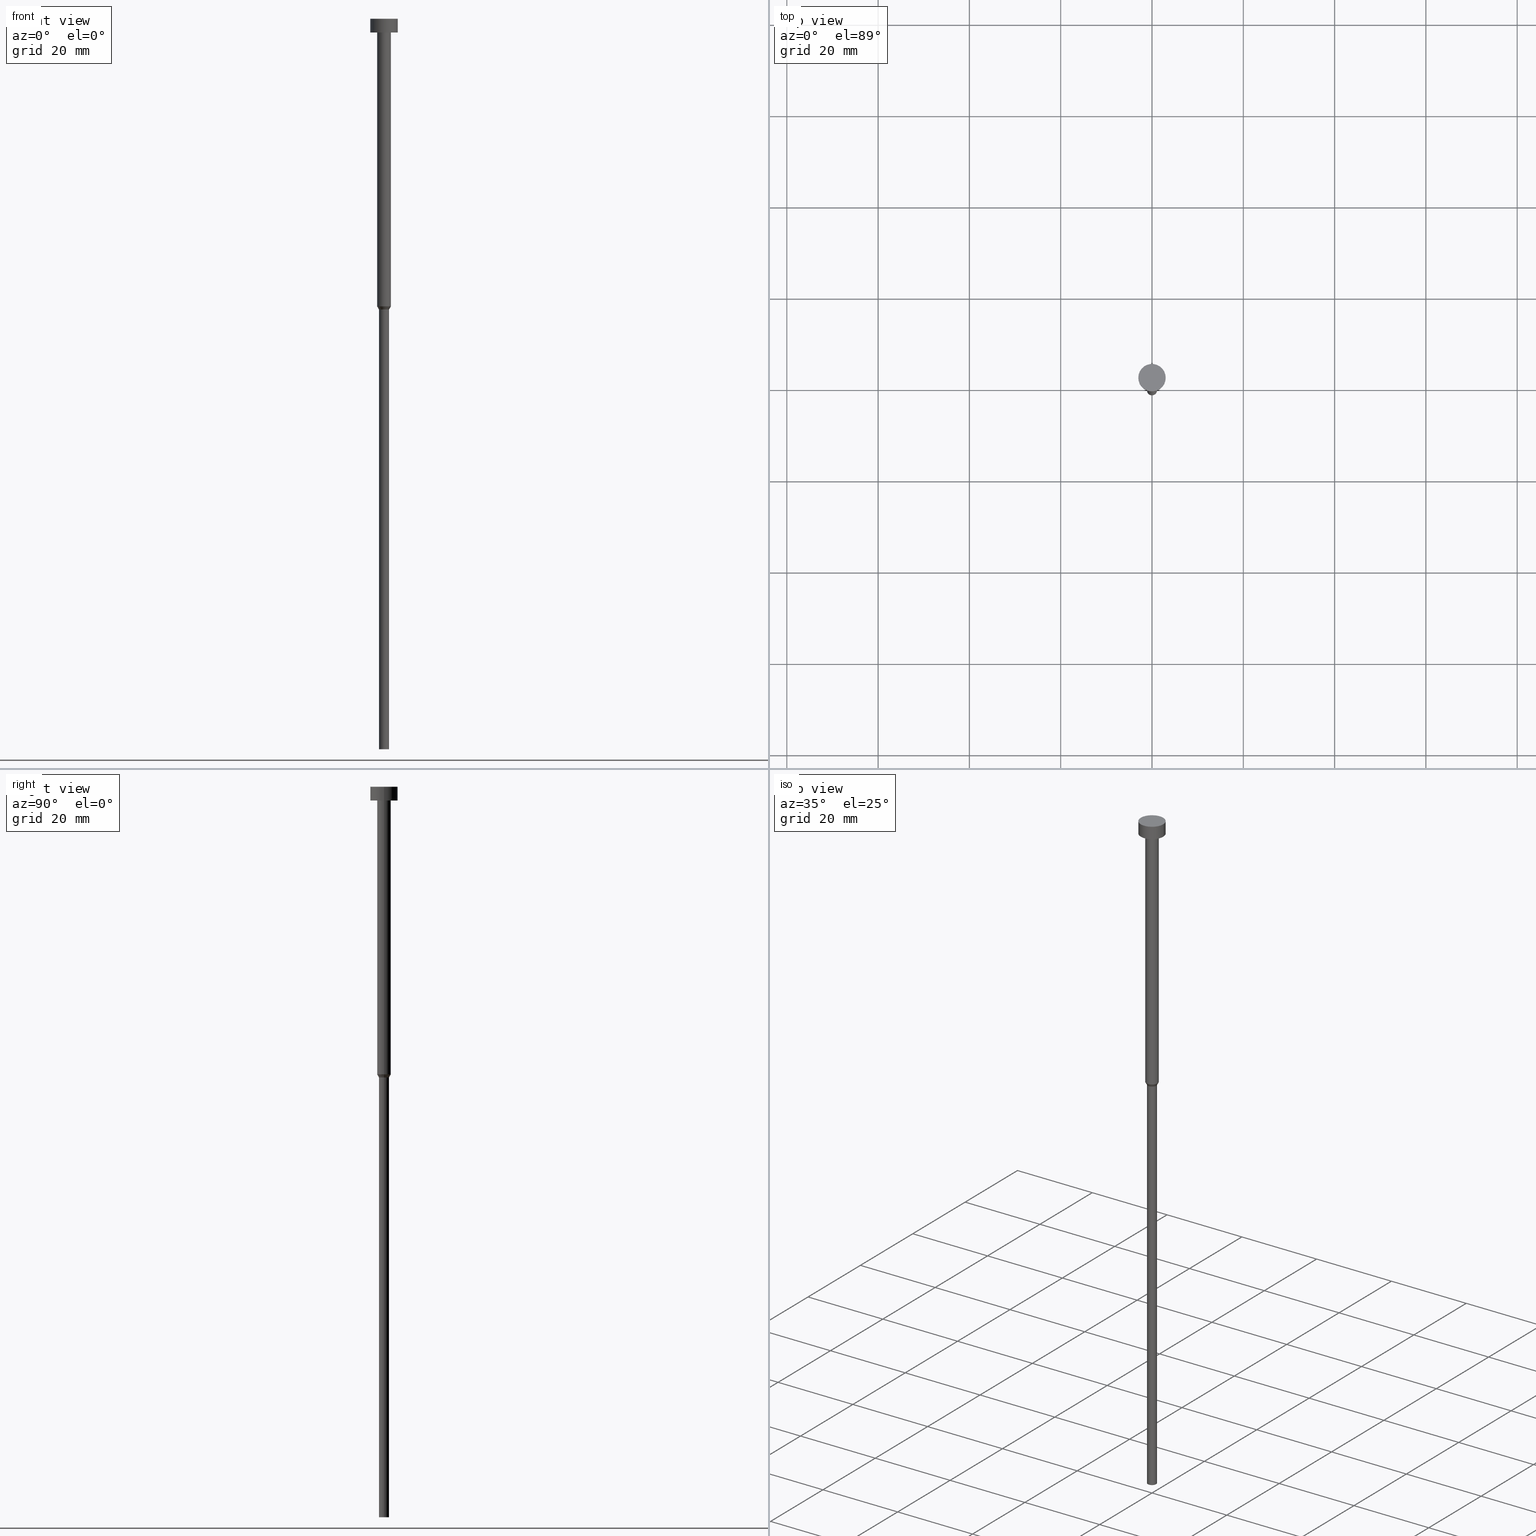
[diagram: canonical four-view strip — front | top / right | iso, engineering-drawing reading convention]
A machine part, canonical four-view strip (front | top / right | iso — engineering-drawing reading convention). The complete STEP part file that produces these views, byte-faithful:
ISO-10303-21;
HEADER;
FILE_DESCRIPTION (( 'STEP AP203' ),
    '1' );
FILE_NAME ('40bc.STEP',
    '2023-02-13T10:01:00',
    ( '' ),
    ( '' ),
    'SwSTEP 2.0',
    'SolidWorks 2019',
    '' );
FILE_SCHEMA (( 'CONFIG_CONTROL_DESIGN' ));
ENDSEC;

DATA;
#1 = VERTEX_POINT ( 'NONE', #105 ) ;
#2 = CIRCLE ( 'NONE', #9, 1.500000000000000000 ) ;
#3 = ORIENTED_EDGE ( 'NONE', *, *, #284, .T. ) ;
#4 = DIRECTION ( 'NONE',  ( 1.000000000000000000, 0.000000000000000000, 0.000000000000000000 ) ) ;
#5 = DATE_TIME_ROLE ( 'creation_date' ) ;
#6 = EDGE_CURVE ( 'NONE', #73, #189, #267, .T. ) ;
#7 = DIRECTION ( 'NONE',  ( -0.000000000000000000, -0.000000000000000000, 1.000000000000000000 ) ) ;
#8 = PERSON_AND_ORGANIZATION_ROLE ( 'design_owner' ) ;
#9 = AXIS2_PLACEMENT_3D ( 'NONE', #227, #241, #317 ) ;
#10 = CARTESIAN_POINT ( 'NONE',  ( 3.000000000000000000, 0.000000000000000000, -3.673940397442059868E-16 ) ) ;
#11 = APPROVAL_DATE_TIME ( #259, #325 ) ;
#12 = DIRECTION ( 'NONE',  ( -0.000000000000000000, -0.000000000000000000, 1.000000000000000000 ) ) ;
#13 = DIRECTION ( 'NONE',  ( 1.000000000000000000, 0.000000000000000000, 0.000000000000000000 ) ) ;
#14 = AXIS2_PLACEMENT_3D ( 'NONE', #44, #210, #156 ) ;
#15 =( LENGTH_UNIT ( ) NAMED_UNIT ( * ) SI_UNIT ( .MILLI., .METRE. ) );
#16 = EDGE_LOOP ( 'NONE', ( #23, #127, #76, #273 ) ) ;
#17 = LINE ( 'NONE', #243, #335 ) ;
#18 = CC_DESIGN_APPROVAL ( #325, ( #242 ) ) ;
#19 = ORIENTED_EDGE ( 'NONE', *, *, #160, .T. ) ;
#20 = VECTOR ( 'NONE', #178, 1000.000000000000000 ) ;
#21 = CARTESIAN_POINT ( 'NONE',  ( 0.000000000000000000, 0.000000000000000000, 0.000000000000000000 ) ) ;
#22 = EDGE_CURVE ( 'NONE', #275, #248, #87, .T. ) ;
#23 = ORIENTED_EDGE ( 'NONE', *, *, #6, .T. ) ;
#24 = CIRCLE ( 'NONE', #222, 3.000000000000000000 ) ;
#25 = CARTESIAN_POINT ( 'NONE',  ( 0.000000000000000000, 0.000000000000000000, -1.836970198721029934E-16 ) ) ;
#26 = ORIENTED_EDGE ( 'NONE', *, *, #99, .T. ) ;
#27 = EDGE_CURVE ( 'NONE', #211, #1, #75, .T. ) ;
#28 = ORIENTED_EDGE ( 'NONE', *, *, #233, .F. ) ;
#29 = PRODUCT_DEFINITION_SHAPE ( 'NONE', 'NONE',  #193 ) ;
#30 = CC_DESIGN_SECURITY_CLASSIFICATION ( #242, ( #345 ) ) ;
#31 = ORIENTED_EDGE ( 'NONE', *, *, #126, .T. ) ;
#32 = APPROVAL_ROLE ( '' ) ;
#33 = CALENDAR_DATE ( 2023, 13, 2 ) ;
#34 = CYLINDRICAL_SURFACE ( 'NONE', #290, 3.000000000000000000 ) ;
#35 = PERSON_AND_ORGANIZATION_ROLE ( 'classification_officer' ) ;
#36 = CIRCLE ( 'NONE', #145, 1.500000000000000000 ) ;
#37 = FACE_OUTER_BOUND ( 'NONE', #252, .T. ) ;
#38 = PERSON_AND_ORGANIZATION ( #302, #130 ) ;
#39 = DIRECTION ( 'NONE',  ( 1.000000000000000000, 0.000000000000000000, 0.000000000000000000 ) ) ;
#40 = FACE_OUTER_BOUND ( 'NONE', #129, .T. ) ;
#41 = LOCAL_TIME ( 11, 1, 0.000000000000000000, #310 ) ;
#42 = DIRECTION ( 'NONE',  ( 1.000000000000000000, 0.000000000000000000, 0.000000000000000000 ) ) ;
#43 = MANIFOLD_SOLID_BREP ( 'Rotovat1', #63 ) ;
#44 = CARTESIAN_POINT ( 'NONE',  ( 0.000000000000000000, 0.000000000000000000, -160.0000000000000000 ) ) ;
#45 = CIRCLE ( 'NONE', #313, 1.100000000000000089 ) ;
#46 = FACE_OUTER_BOUND ( 'NONE', #162, .T. ) ;
#47 = CIRCLE ( 'NONE', #153, 1.100000000000000089 ) ;
#48 = EDGE_LOOP ( 'NONE', ( #192, #3, #250, #136 ) ) ;
#49 = ORIENTED_EDGE ( 'NONE', *, *, #292, .T. ) ;
#50 = ORIENTED_EDGE ( 'NONE', *, *, #212, .F. ) ;
#51 = EDGE_CURVE ( 'NONE', #189, #275, #246, .T. ) ;
#52 = DIRECTION ( 'NONE',  ( 1.000000000000000000, 0.000000000000000000, 0.000000000000000000 ) ) ;
#53 = DIRECTION ( 'NONE',  ( -0.000000000000000000, -0.000000000000000000, 1.000000000000000000 ) ) ;
#54 = VECTOR ( 'NONE', #217, 1000.000000000000000 ) ;
#55 = COORDINATED_UNIVERSAL_TIME_OFFSET ( 1, 0, .AHEAD. ) ;
#56 = DIRECTION ( 'NONE',  ( -0.000000000000000000, -0.000000000000000000, 1.000000000000000000 ) ) ;
#57 = CC_DESIGN_PERSON_AND_ORGANIZATION_ASSIGNMENT ( #64, #85, ( #193 ) ) ;
#58 =( GEOMETRIC_REPRESENTATION_CONTEXT ( 3 ) GLOBAL_UNCERTAINTY_ASSIGNED_CONTEXT ( ( #116 ) ) GLOBAL_UNIT_ASSIGNED_CONTEXT ( ( #15, #132, #329 ) ) REPRESENTATION_CONTEXT ( 'NONE', 'WORKASPACE' ) );
#59 = PERSON_AND_ORGANIZATION_ROLE ( 'design_supplier' ) ;
#60 = CARTESIAN_POINT ( 'NONE',  ( 1.500000000000000000, 0.000000000000000000, -63.00000000000000000 ) ) ;
#61 = SECURITY_CLASSIFICATION_LEVEL ( 'unclassified' ) ;
#62 = DIRECTION ( 'NONE',  ( 1.000000000000000000, 0.000000000000000000, 0.000000000000000000 ) ) ;
#63 = CLOSED_SHELL ( 'NONE', ( #187, #316, #108, #249, #327, #220, #299, #118, #277, #346, #89 ) ) ;
#64 = PERSON_AND_ORGANIZATION ( #302, #130 ) ;
#65 = EDGE_CURVE ( 'NONE', #248, #330, #103, .T. ) ;
#66 = LINE ( 'NONE', #147, #20 ) ;
#67 = AXIS2_PLACEMENT_3D ( 'NONE', #74, #71, #94 ) ;
#68 = CARTESIAN_POINT ( 'NONE',  ( 0.000000000000000000, 0.000000000000000000, 0.000000000000000000 ) ) ;
#69 = CARTESIAN_POINT ( 'NONE',  ( 0.000000000000000000, 0.000000000000000000, -3.000000000000000888 ) ) ;
#70 = AXIS2_PLACEMENT_3D ( 'NONE', #204, #12, #4 ) ;
#71 = DIRECTION ( 'NONE',  ( -0.000000000000000000, -0.000000000000000000, 1.000000000000000000 ) ) ;
#72 = AXIS2_PLACEMENT_3D ( 'NONE', #188, #293, #123 ) ;
#73 = VERTEX_POINT ( 'NONE', #79 ) ;
#74 = CARTESIAN_POINT ( 'NONE',  ( 0.000000000000000000, 0.000000000000000000, -63.00000000000000000 ) ) ;
#75 = CIRCLE ( 'NONE', #166, 3.000000000000000000 ) ;
#76 = ORIENTED_EDGE ( 'NONE', *, *, #270, .F. ) ;
#77 = DIRECTION ( 'NONE',  ( -0.000000000000000000, -0.000000000000000000, 1.000000000000000000 ) ) ;
#78 = ORIENTED_EDGE ( 'NONE', *, *, #6, .F. ) ;
#79 = CARTESIAN_POINT ( 'NONE',  ( 1.100000000000000089, 0.000000000000000000, -63.69282032302754715 ) ) ;
#80 = LOCAL_TIME ( 11, 1, 0.000000000000000000, #226 ) ;
#81 = EDGE_LOOP ( 'NONE', ( #50, #133 ) ) ;
#82 = EDGE_CURVE ( 'NONE', #98, #211, #323, .T. ) ;
#83 = DIRECTION ( 'NONE',  ( -0.000000000000000000, -0.000000000000000000, 1.000000000000000000 ) ) ;
#84 = DIRECTION ( 'NONE',  ( 1.000000000000000000, 0.000000000000000000, 0.000000000000000000 ) ) ;
#85 = PERSON_AND_ORGANIZATION_ROLE ( 'creator' ) ;
#86 = DIRECTION ( 'NONE',  ( -0.000000000000000000, -0.000000000000000000, 1.000000000000000000 ) ) ;
#87 = CIRCLE ( 'NONE', #134, 1.500000000000000000 ) ;
#88 = ORIENTED_EDGE ( 'NONE', *, *, #27, .T. ) ;
#89 = ADVANCED_FACE ( 'NONE', ( #218 ), #194, .T. ) ;
#90 = CALENDAR_DATE ( 2023, 13, 2 ) ;
#91 = DIRECTION ( 'NONE',  ( -0.000000000000000000, -0.000000000000000000, 1.000000000000000000 ) ) ;
#92 = DIRECTION ( 'NONE',  ( -0.000000000000000000, -0.000000000000000000, 1.000000000000000000 ) ) ;
#93 = FACE_OUTER_BOUND ( 'NONE', #48, .T. ) ;
#94 = DIRECTION ( 'NONE',  ( 1.000000000000000000, 0.000000000000000000, 0.000000000000000000 ) ) ;
#95 = PRODUCT_RELATED_PRODUCT_CATEGORY ( 'detail', '', ( #351 ) ) ;
#96 = LOCAL_TIME ( 11, 1, 0.000000000000000000, #228 ) ;
#97 = FACE_BOUND ( 'NONE', #353, .T. ) ;
#98 = VERTEX_POINT ( 'NONE', #165 ) ;
#99 = EDGE_CURVE ( 'NONE', #276, #330, #161, .T. ) ;
#100 = EDGE_LOOP ( 'NONE', ( #88, #31 ) ) ;
#101 = AXIS2_PLACEMENT_3D ( 'NONE', #25, #296, #52 ) ;
#102 = DIRECTION ( 'NONE',  ( -0.000000000000000000, -0.000000000000000000, 1.000000000000000000 ) ) ;
#103 = LINE ( 'NONE', #274, #54 ) ;
#104 = DIRECTION ( 'NONE',  ( 1.000000000000000000, 0.000000000000000000, 0.000000000000000000 ) ) ;
#105 = CARTESIAN_POINT ( 'NONE',  ( -3.000000000000000000, 3.673940397442059868E-16, -3.673940397442059868E-16 ) ) ;
#106 = CC_DESIGN_DATE_AND_TIME_ASSIGNMENT ( #172, #138, ( #242 ) ) ;
#107 = ORIENTED_EDGE ( 'NONE', *, *, #341, .T. ) ;
#108 = ADVANCED_FACE ( 'NONE', ( #336 ), #225, .T. ) ;
#109 = CARTESIAN_POINT ( 'NONE',  ( 0.000000000000000000, 0.000000000000000000, -3.673940397442059868E-16 ) ) ;
#110 = DIRECTION ( 'NONE',  ( 1.000000000000000000, 0.000000000000000000, 0.000000000000000000 ) ) ;
#111 = AXIS2_PLACEMENT_3D ( 'NONE', #285, #92, #206 ) ;
#112 = APPLICATION_PROTOCOL_DEFINITION ( 'international standard', 'config_control_design', 1994, #308 ) ;
#113 = LINE ( 'NONE', #255, #184 ) ;
#114 = APPROVAL_PERSON_ORGANIZATION ( #305, #122, #234 ) ;
#115 = CARTESIAN_POINT ( 'NONE',  ( 0.000000000000000000, 0.000000000000000000, 0.000000000000000000 ) ) ;
#116 = UNCERTAINTY_MEASURE_WITH_UNIT (LENGTH_MEASURE( 1.000000000000000082E-05 ), #15, 'distance_accuracy_value', 'NONE');
#117 = CARTESIAN_POINT ( 'NONE',  ( 0.000000000000000000, 0.000000000000000000, -3.000000000000000888 ) ) ;
#118 = ADVANCED_FACE ( 'NONE', ( #306 ), #149, .T. ) ;
#119 = SHAPE_DEFINITION_REPRESENTATION ( #29, #244 ) ;
#120 = DIRECTION ( 'NONE',  ( 1.000000000000000000, 0.000000000000000000, 0.000000000000000000 ) ) ;
#121 = DIRECTION ( 'NONE',  ( 1.000000000000000000, 0.000000000000000000, 0.000000000000000000 ) ) ;
#122 = APPROVAL ( #180, 'NEUR�EN�' ) ;
#123 = DIRECTION ( 'NONE',  ( 1.000000000000000000, 0.000000000000000000, 0.000000000000000000 ) ) ;
#124 = APPROVAL ( #283, 'NEUR�EN�' ) ;
#125 = ORIENTED_EDGE ( 'NONE', *, *, #82, .T. ) ;
#126 = EDGE_CURVE ( 'NONE', #1, #211, #245, .T. ) ;
#127 = ORIENTED_EDGE ( 'NONE', *, *, #51, .T. ) ;
#128 = DIRECTION ( 'NONE',  ( -0.000000000000000000, -0.000000000000000000, 1.000000000000000000 ) ) ;
#129 = EDGE_LOOP ( 'NONE', ( #198, #312 ) ) ;
#130 = ORGANIZATION ( 'NEUR�EN�', 'NEUR�EN�', '' ) ;
#131 = ORIENTED_EDGE ( 'NONE', *, *, #99, .F. ) ;
#132 =( NAMED_UNIT ( * ) PLANE_ANGLE_UNIT ( ) SI_UNIT ( $, .RADIAN. ) );
#133 = ORIENTED_EDGE ( 'NONE', *, *, #182, .F. ) ;
#134 = AXIS2_PLACEMENT_3D ( 'NONE', #164, #53, #331 ) ;
#135 = ORIENTED_EDGE ( 'NONE', *, *, #212, .T. ) ;
#136 = ORIENTED_EDGE ( 'NONE', *, *, #65, .F. ) ;
#137 = LOCAL_TIME ( 11, 1, 0.000000000000000000, #55 ) ;
#138 = DATE_TIME_ROLE ( 'classification_date' ) ;
#139 = DIRECTION ( 'NONE',  ( -0.000000000000000000, -0.000000000000000000, 1.000000000000000000 ) ) ;
#140 = PERSON_AND_ORGANIZATION_ROLE ( 'creator' ) ;
#141 = CARTESIAN_POINT ( 'NONE',  ( 0.000000000000000000, 0.000000000000000000, 0.000000000000000000 ) ) ;
#142 = AXIS2_PLACEMENT_3D ( 'NONE', #201, #257, #110 ) ;
#143 = DATE_AND_TIME ( #203, #41 ) ;
#144 = DIRECTION ( 'NONE',  ( -0.000000000000000000, -0.000000000000000000, 1.000000000000000000 ) ) ;
#145 = AXIS2_PLACEMENT_3D ( 'NONE', #348, #102, #216 ) ;
#146 = CALENDAR_DATE ( 2023, 13, 2 ) ;
#147 = CARTESIAN_POINT ( 'NONE',  ( 1.500000000000000000, 0.000000000000000000, -63.00000000000000000 ) ) ;
#148 = CALENDAR_DATE ( 2023, 13, 2 ) ;
#149 = CYLINDRICAL_SURFACE ( 'NONE', #111, 1.500000000000000000 ) ;
#150 = EDGE_CURVE ( 'NONE', #189, #73, #45, .T. ) ;
#151 = CYLINDRICAL_SURFACE ( 'NONE', #271, 3.000000000000000000 ) ;
#152 = CC_DESIGN_PERSON_AND_ORGANIZATION_ASSIGNMENT ( #200, #35, ( #242 ) ) ;
#153 = AXIS2_PLACEMENT_3D ( 'NONE', #282, #315, #311 ) ;
#154 = PLANE ( 'NONE',  #14 ) ;
#155 = AXIS2_PLACEMENT_3D ( 'NONE', #219, #56, #104 ) ;
#156 = DIRECTION ( 'NONE',  ( -1.000000000000000000, 0.000000000000000000, -0.000000000000000000 ) ) ;
#157 = AXIS2_PLACEMENT_3D ( 'NONE', #68, #286, #39 ) ;
#158 = DIRECTION ( 'NONE',  ( 0.000000000000000000, 0.000000000000000000, -1.000000000000000000 ) ) ;
#159 = EDGE_LOOP ( 'NONE', ( #49, #272, #78, #343 ) ) ;
#160 = EDGE_CURVE ( 'NONE', #247, #1, #113, .T. ) ;
#161 = CIRCLE ( 'NONE', #301, 1.500000000000000000 ) ;
#162 = EDGE_LOOP ( 'NONE', ( #224, #269, #125, #197 ) ) ;
#163 = CC_DESIGN_PERSON_AND_ORGANIZATION_ASSIGNMENT ( #169, #140, ( #345 ) ) ;
#164 = CARTESIAN_POINT ( 'NONE',  ( 0.000000000000000000, 0.000000000000000000, -63.00000000000000000 ) ) ;
#165 = CARTESIAN_POINT ( 'NONE',  ( 3.000000000000000000, 0.000000000000000000, -3.000000000000000888 ) ) ;
#166 = AXIS2_PLACEMENT_3D ( 'NONE', #109, #83, #170 ) ;
#167 = DESIGN_CONTEXT ( 'detailed design', #308, 'design' ) ;
#168 = ORIENTED_EDGE ( 'NONE', *, *, #215, .T. ) ;
#169 = PERSON_AND_ORGANIZATION ( #302, #130 ) ;
#170 = DIRECTION ( 'NONE',  ( 1.000000000000000000, 0.000000000000000000, 0.000000000000000000 ) ) ;
#171 = CIRCLE ( 'NONE', #342, 1.100000000000000089 ) ;
#172 = DATE_AND_TIME ( #146, #80 ) ;
#173 = CYLINDRICAL_SURFACE ( 'NONE', #157, 1.100000000000000089 ) ;
#174 = EDGE_CURVE ( 'NONE', #240, #195, #47, .T. ) ;
#175 = PERSON_AND_ORGANIZATION ( #302, #130 ) ;
#176 = CARTESIAN_POINT ( 'NONE',  ( -1.100000000000000089, 1.347111479062088503E-16, -63.69282032302754715 ) ) ;
#177 = DATE_AND_TIME ( #33, #96 ) ;
#178 = DIRECTION ( 'NONE',  ( 0.5000000000000026645, 0.000000000000000000, 0.8660254037844371533 ) ) ;
#179 = CC_DESIGN_APPROVAL ( #124, ( #345 ) ) ;
#180 = APPROVAL_STATUS ( 'not_yet_approved' ) ;
#181 = DIRECTION ( 'NONE',  ( -0.000000000000000000, -0.000000000000000000, 1.000000000000000000 ) ) ;
#182 = EDGE_CURVE ( 'NONE', #247, #98, #24, .T. ) ;
#183 = LINE ( 'NONE', #340, #230 ) ;
#184 = VECTOR ( 'NONE', #181, 1000.000000000000000 ) ;
#185 = CARTESIAN_POINT ( 'NONE',  ( 0.000000000000000000, -3.000000000000000000, -3.000000000000000888 ) ) ;
#186 = ORIENTED_EDGE ( 'NONE', *, *, #22, .F. ) ;
#187 = ADVANCED_FACE ( 'NONE', ( #309 ), #34, .T. ) ;
#188 = CARTESIAN_POINT ( 'NONE',  ( 0.000000000000000000, 0.000000000000000000, 0.000000000000000000 ) ) ;
#189 = VERTEX_POINT ( 'NONE', #176 ) ;
#190 = APPROVAL_PERSON_ORGANIZATION ( #175, #325, #32 ) ;
#191 = LINE ( 'NONE', #238, #279 ) ;
#192 = ORIENTED_EDGE ( 'NONE', *, *, #270, .T. ) ;
#193 = PRODUCT_DEFINITION ( 'NEZN�M�', '', #345, #167 ) ;
#194 = PLANE ( 'NONE',  #101 ) ;
#195 = VERTEX_POINT ( 'NONE', #338 ) ;
#196 = APPROVAL_PERSON_ORGANIZATION ( #334, #124, #278 ) ;
#197 = ORIENTED_EDGE ( 'NONE', *, *, #126, .F. ) ;
#198 = ORIENTED_EDGE ( 'NONE', *, *, #292, .F. ) ;
#199 = EDGE_LOOP ( 'NONE', ( #297, #354, #168, #186 ) ) ;
#200 = PERSON_AND_ORGANIZATION ( #302, #130 ) ;
#201 = CARTESIAN_POINT ( 'NONE',  ( 0.000000000000000000, 0.000000000000000000, -3.673940397442059868E-16 ) ) ;
#202 = AXIS2_PLACEMENT_3D ( 'NONE', #185, #158, #320 ) ;
#203 = CALENDAR_DATE ( 2023, 13, 2 ) ;
#204 = CARTESIAN_POINT ( 'NONE',  ( 0.000000000000000000, 0.000000000000000000, -63.00000000000000000 ) ) ;
#205 = DIRECTION ( 'NONE',  ( 0.000000000000000000, 0.000000000000000000, 1.000000000000000000 ) ) ;
#206 = DIRECTION ( 'NONE',  ( 1.000000000000000000, 0.000000000000000000, 0.000000000000000000 ) ) ;
#207 = CARTESIAN_POINT ( 'NONE',  ( -1.100000000000000089, 1.347111479062088503E-16, -160.0000000000000000 ) ) ;
#208 = CARTESIAN_POINT ( 'NONE',  ( 0.000000000000000000, 0.000000000000000000, -63.69282032302754715 ) ) ;
#209 = PLANE ( 'NONE',  #202 ) ;
#210 = DIRECTION ( 'NONE',  ( 0.000000000000000000, 0.000000000000000000, -1.000000000000000000 ) ) ;
#211 = VERTEX_POINT ( 'NONE', #10 ) ;
#212 = EDGE_CURVE ( 'NONE', #98, #247, #352, .T. ) ;
#213 = FACE_OUTER_BOUND ( 'NONE', #81, .T. ) ;
#214 = VECTOR ( 'NONE', #350, 1000.000000000000000 ) ;
#215 = EDGE_CURVE ( 'NONE', #73, #248, #66, .T. ) ;
#216 = DIRECTION ( 'NONE',  ( 1.000000000000000000, 0.000000000000000000, 0.000000000000000000 ) ) ;
#217 = DIRECTION ( 'NONE',  ( -0.000000000000000000, -0.000000000000000000, 1.000000000000000000 ) ) ;
#218 = FACE_OUTER_BOUND ( 'NONE', #100, .T. ) ;
#219 = CARTESIAN_POINT ( 'NONE',  ( 0.000000000000000000, 0.000000000000000000, -63.69282032302754715 ) ) ;
#220 = ADVANCED_FACE ( 'NONE', ( #37 ), #260, .T. ) ;
#221 = AXIS2_PLACEMENT_3D ( 'NONE', #235, #333, #84 ) ;
#222 = AXIS2_PLACEMENT_3D ( 'NONE', #69, #7, #229 ) ;
#223 = ORIENTED_EDGE ( 'NONE', *, *, #174, .T. ) ;
#224 = ORIENTED_EDGE ( 'NONE', *, *, #160, .F. ) ;
#225 = CONICAL_SURFACE ( 'NONE', #70, 1.500000000000000000, 0.5235987755983019243 ) ;
#226 = COORDINATED_UNIVERSAL_TIME_OFFSET ( 1, 0, .AHEAD. ) ;
#227 = CARTESIAN_POINT ( 'NONE',  ( 0.000000000000000000, 0.000000000000000000, -63.00000000000000000 ) ) ;
#228 = COORDINATED_UNIVERSAL_TIME_OFFSET ( 1, 0, .AHEAD. ) ;
#229 = DIRECTION ( 'NONE',  ( 1.000000000000000000, 0.000000000000000000, 0.000000000000000000 ) ) ;
#230 = VECTOR ( 'NONE', #139, 1000.000000000000000 ) ;
#231 = PERSON_AND_ORGANIZATION ( #302, #130 ) ;
#232 = CARTESIAN_POINT ( 'NONE',  ( 0.000000000000000000, 0.000000000000000000, -3.000000000000000888 ) ) ;
#233 = EDGE_CURVE ( 'NONE', #240, #189, #183, .T. ) ;
#234 = APPROVAL_ROLE ( '' ) ;
#235 = CARTESIAN_POINT ( 'NONE',  ( 0.000000000000000000, 0.000000000000000000, 0.000000000000000000 ) ) ;
#236 = DIRECTION ( 'NONE',  ( 1.000000000000000000, 0.000000000000000000, 0.000000000000000000 ) ) ;
#237 = AXIS2_PLACEMENT_3D ( 'NONE', #117, #86, #120 ) ;
#238 = CARTESIAN_POINT ( 'NONE',  ( -1.500000000000000000, 1.836970198721029934E-16, 0.000000000000000000 ) ) ;
#239 = CARTESIAN_POINT ( 'NONE',  ( -1.500000000000000000, 1.836970198721029934E-16, -63.00000000000000000 ) ) ;
#240 = VERTEX_POINT ( 'NONE', #207 ) ;
#241 = DIRECTION ( 'NONE',  ( -0.000000000000000000, -0.000000000000000000, 1.000000000000000000 ) ) ;
#242 = SECURITY_CLASSIFICATION ( '', '', #61 ) ;
#243 = CARTESIAN_POINT ( 'NONE',  ( 1.100000000000000089, 0.000000000000000000, 0.000000000000000000 ) ) ;
#244 = ADVANCED_BREP_SHAPE_REPRESENTATION ( '40bc', ( #43, #264 ), #58 ) ;
#245 = CIRCLE ( 'NONE', #142, 3.000000000000000000 ) ;
#246 = LINE ( 'NONE', #326, #214 ) ;
#247 = VERTEX_POINT ( 'NONE', #314 ) ;
#248 = VERTEX_POINT ( 'NONE', #60 ) ;
#249 = ADVANCED_FACE ( 'NONE', ( #254 ), #173, .T. ) ;
#250 = ORIENTED_EDGE ( 'NONE', *, *, #355, .F. ) ;
#251 = APPLICATION_PROTOCOL_DEFINITION ( 'international standard', 'config_control_design', 1994, #349 ) ;
#252 = EDGE_LOOP ( 'NONE', ( #28, #223, #107, #289 ) ) ;
#253 = CC_DESIGN_PERSON_AND_ORGANIZATION_ASSIGNMENT ( #231, #8, ( #351 ) ) ;
#254 = FACE_OUTER_BOUND ( 'NONE', #159, .T. ) ;
#255 = CARTESIAN_POINT ( 'NONE',  ( -3.000000000000000000, 3.673940397442059868E-16, 0.000000000000000000 ) ) ;
#256 = MECHANICAL_CONTEXT ( 'NONE', #349, 'mechanical' ) ;
#257 = DIRECTION ( 'NONE',  ( -0.000000000000000000, -0.000000000000000000, 1.000000000000000000 ) ) ;
#258 = CONICAL_SURFACE ( 'NONE', #67, 1.500000000000000000, 0.5235987755983019243 ) ;
#259 = DATE_AND_TIME ( #90, #328 ) ;
#260 = CYLINDRICAL_SURFACE ( 'NONE', #221, 1.100000000000000089 ) ;
#261 = COORDINATED_UNIVERSAL_TIME_OFFSET ( 1, 0, .AHEAD. ) ;
#262 = VECTOR ( 'NONE', #77, 1000.000000000000000 ) ;
#263 = DIRECTION ( 'NONE',  ( -0.000000000000000000, -0.000000000000000000, 1.000000000000000000 ) ) ;
#264 = AXIS2_PLACEMENT_3D ( 'NONE', #115, #205, #236 ) ;
#265 = ORIENTED_EDGE ( 'NONE', *, *, #82, .F. ) ;
#266 = CARTESIAN_POINT ( 'NONE',  ( 1.500000000000000000, 0.000000000000000000, -3.000000000000000888 ) ) ;
#267 = CIRCLE ( 'NONE', #155, 1.100000000000000089 ) ;
#268 = CARTESIAN_POINT ( 'NONE',  ( 0.000000000000000000, 0.000000000000000000, -160.0000000000000000 ) ) ;
#269 = ORIENTED_EDGE ( 'NONE', *, *, #182, .T. ) ;
#270 = EDGE_CURVE ( 'NONE', #248, #275, #2, .T. ) ;
#271 = AXIS2_PLACEMENT_3D ( 'NONE', #21, #128, #42 ) ;
#272 = ORIENTED_EDGE ( 'NONE', *, *, #233, .T. ) ;
#273 = ORIENTED_EDGE ( 'NONE', *, *, #215, .F. ) ;
#274 = CARTESIAN_POINT ( 'NONE',  ( 1.500000000000000000, 0.000000000000000000, 0.000000000000000000 ) ) ;
#275 = VERTEX_POINT ( 'NONE', #239 ) ;
#276 = VERTEX_POINT ( 'NONE', #344 ) ;
#277 = ADVANCED_FACE ( 'NONE', ( #97, #213 ), #209, .T. ) ;
#278 = APPROVAL_ROLE ( '' ) ;
#279 = VECTOR ( 'NONE', #291, 1000.000000000000000 ) ;
#280 = ORIENTED_EDGE ( 'NONE', *, *, #355, .T. ) ;
#281 = APPROVAL_STATUS ( 'not_yet_approved' ) ;
#282 = CARTESIAN_POINT ( 'NONE',  ( 0.000000000000000000, 0.000000000000000000, -160.0000000000000000 ) ) ;
#283 = APPROVAL_STATUS ( 'not_yet_approved' ) ;
#284 = EDGE_CURVE ( 'NONE', #275, #276, #191, .T. ) ;
#285 = CARTESIAN_POINT ( 'NONE',  ( 0.000000000000000000, 0.000000000000000000, 0.000000000000000000 ) ) ;
#286 = DIRECTION ( 'NONE',  ( -0.000000000000000000, -0.000000000000000000, 1.000000000000000000 ) ) ;
#287 = DIRECTION ( 'NONE',  ( -0.000000000000000000, -0.000000000000000000, 1.000000000000000000 ) ) ;
#288 = FACE_OUTER_BOUND ( 'NONE', #199, .T. ) ;
#289 = ORIENTED_EDGE ( 'NONE', *, *, #150, .F. ) ;
#290 = AXIS2_PLACEMENT_3D ( 'NONE', #141, #91, #62 ) ;
#291 = DIRECTION ( 'NONE',  ( -0.000000000000000000, -0.000000000000000000, 1.000000000000000000 ) ) ;
#292 = EDGE_CURVE ( 'NONE', #195, #240, #171, .T. ) ;
#293 = DIRECTION ( 'NONE',  ( -0.000000000000000000, -0.000000000000000000, 1.000000000000000000 ) ) ;
#294 = ORIENTED_EDGE ( 'NONE', *, *, #22, .T. ) ;
#295 = DIRECTION ( 'NONE',  ( 1.000000000000000000, 0.000000000000000000, 0.000000000000000000 ) ) ;
#296 = DIRECTION ( 'NONE',  ( 0.000000000000000000, -0.000000000000000000, 1.000000000000000000 ) ) ;
#297 = ORIENTED_EDGE ( 'NONE', *, *, #51, .F. ) ;
#298 = CARTESIAN_POINT ( 'NONE',  ( 3.000000000000000000, 0.000000000000000000, 0.000000000000000000 ) ) ;
#299 = ADVANCED_FACE ( 'NONE', ( #288 ), #258, .T. ) ;
#300 = EDGE_LOOP ( 'NONE', ( #135, #19, #339, #265 ) ) ;
#301 = AXIS2_PLACEMENT_3D ( 'NONE', #232, #287, #13 ) ;
#302 = PERSON ( 'NEUR�EN�', 'NEUR�EN�', 'NEUR�EN�', ('NEUR�EN�'), ('NEUR�EN�'), ('NEUR�EN�') ) ;
#303 = EDGE_LOOP ( 'NONE', ( #322, #294, #324, #131 ) ) ;
#304 = CC_DESIGN_DATE_AND_TIME_ASSIGNMENT ( #177, #5, ( #193 ) ) ;
#305 = PERSON_AND_ORGANIZATION ( #302, #130 ) ;
#306 = FACE_OUTER_BOUND ( 'NONE', #303, .T. ) ;
#307 = APPROVAL_DATE_TIME ( #332, #124 ) ;
#308 = APPLICATION_CONTEXT ( 'configuration controlled 3d designs of mechanical parts and assemblies' ) ;
#309 = FACE_OUTER_BOUND ( 'NONE', #300, .T. ) ;
#310 = COORDINATED_UNIVERSAL_TIME_OFFSET ( 1, 0, .AHEAD. ) ;
#311 = DIRECTION ( 'NONE',  ( 1.000000000000000000, 0.000000000000000000, 0.000000000000000000 ) ) ;
#312 = ORIENTED_EDGE ( 'NONE', *, *, #174, .F. ) ;
#313 = AXIS2_PLACEMENT_3D ( 'NONE', #208, #144, #121 ) ;
#314 = CARTESIAN_POINT ( 'NONE',  ( -3.000000000000000000, 3.673940397442059868E-16, -3.000000000000000888 ) ) ;
#315 = DIRECTION ( 'NONE',  ( -0.000000000000000000, -0.000000000000000000, 1.000000000000000000 ) ) ;
#316 = ADVANCED_FACE ( 'NONE', ( #93 ), #318, .T. ) ;
#317 = DIRECTION ( 'NONE',  ( 1.000000000000000000, 0.000000000000000000, 0.000000000000000000 ) ) ;
#318 = CYLINDRICAL_SURFACE ( 'NONE', #72, 1.500000000000000000 ) ;
#319 = CC_DESIGN_APPROVAL ( #122, ( #193 ) ) ;
#320 = DIRECTION ( 'NONE',  ( -1.000000000000000000, 0.000000000000000000, -0.000000000000000000 ) ) ;
#321 = CC_DESIGN_PERSON_AND_ORGANIZATION_ASSIGNMENT ( #38, #59, ( #345 ) ) ;
#322 = ORIENTED_EDGE ( 'NONE', *, *, #284, .F. ) ;
#323 = LINE ( 'NONE', #298, #262 ) ;
#324 = ORIENTED_EDGE ( 'NONE', *, *, #65, .T. ) ;
#325 = APPROVAL ( #281, 'NEUR�EN�' ) ;
#326 = CARTESIAN_POINT ( 'NONE',  ( -1.500000000000000000, 1.836970198721029934E-16, -63.00000000000000000 ) ) ;
#327 = ADVANCED_FACE ( 'NONE', ( #40 ), #154, .T. ) ;
#328 = LOCAL_TIME ( 11, 1, 0.000000000000000000, #261 ) ;
#329 =( NAMED_UNIT ( * ) SI_UNIT ( $, .STERADIAN. ) SOLID_ANGLE_UNIT ( ) );
#330 = VERTEX_POINT ( 'NONE', #266 ) ;
#331 = DIRECTION ( 'NONE',  ( 1.000000000000000000, 0.000000000000000000, 0.000000000000000000 ) ) ;
#332 = DATE_AND_TIME ( #148, #137 ) ;
#333 = DIRECTION ( 'NONE',  ( -0.000000000000000000, -0.000000000000000000, 1.000000000000000000 ) ) ;
#334 = PERSON_AND_ORGANIZATION ( #302, #130 ) ;
#335 = VECTOR ( 'NONE', #347, 1000.000000000000000 ) ;
#336 = FACE_OUTER_BOUND ( 'NONE', #16, .T. ) ;
#337 = APPROVAL_DATE_TIME ( #143, #122 ) ;
#338 = CARTESIAN_POINT ( 'NONE',  ( 1.100000000000000089, 0.000000000000000000, -160.0000000000000000 ) ) ;
#339 = ORIENTED_EDGE ( 'NONE', *, *, #27, .F. ) ;
#340 = CARTESIAN_POINT ( 'NONE',  ( -1.100000000000000089, 1.347111479062088503E-16, 0.000000000000000000 ) ) ;
#341 = EDGE_CURVE ( 'NONE', #195, #73, #17, .T. ) ;
#342 = AXIS2_PLACEMENT_3D ( 'NONE', #268, #263, #295 ) ;
#343 = ORIENTED_EDGE ( 'NONE', *, *, #341, .F. ) ;
#344 = CARTESIAN_POINT ( 'NONE',  ( -1.500000000000000000, 1.836970198721029934E-16, -3.000000000000000888 ) ) ;
#345 = PRODUCT_DEFINITION_FORMATION_WITH_SPECIFIED_SOURCE ( 'LIBOVOLN�', '', #351, .NOT_KNOWN. ) ;
#346 = ADVANCED_FACE ( 'NONE', ( #46 ), #151, .T. ) ;
#347 = DIRECTION ( 'NONE',  ( -0.000000000000000000, -0.000000000000000000, 1.000000000000000000 ) ) ;
#348 = CARTESIAN_POINT ( 'NONE',  ( 0.000000000000000000, 0.000000000000000000, -3.000000000000000888 ) ) ;
#349 = APPLICATION_CONTEXT ( 'configuration controlled 3d designs of mechanical parts and assemblies' ) ;
#350 = DIRECTION ( 'NONE',  ( -0.5000000000000026645, 6.123233995736798083E-17, 0.8660254037844371533 ) ) ;
#351 = PRODUCT ( '40bc', '40bc', '', ( #256 ) ) ;
#352 = CIRCLE ( 'NONE', #237, 3.000000000000000000 ) ;
#353 = EDGE_LOOP ( 'NONE', ( #280, #26 ) ) ;
#354 = ORIENTED_EDGE ( 'NONE', *, *, #150, .T. ) ;
#355 = EDGE_CURVE ( 'NONE', #330, #276, #36, .T. ) ;
ENDSEC;
END-ISO-10303-21;
